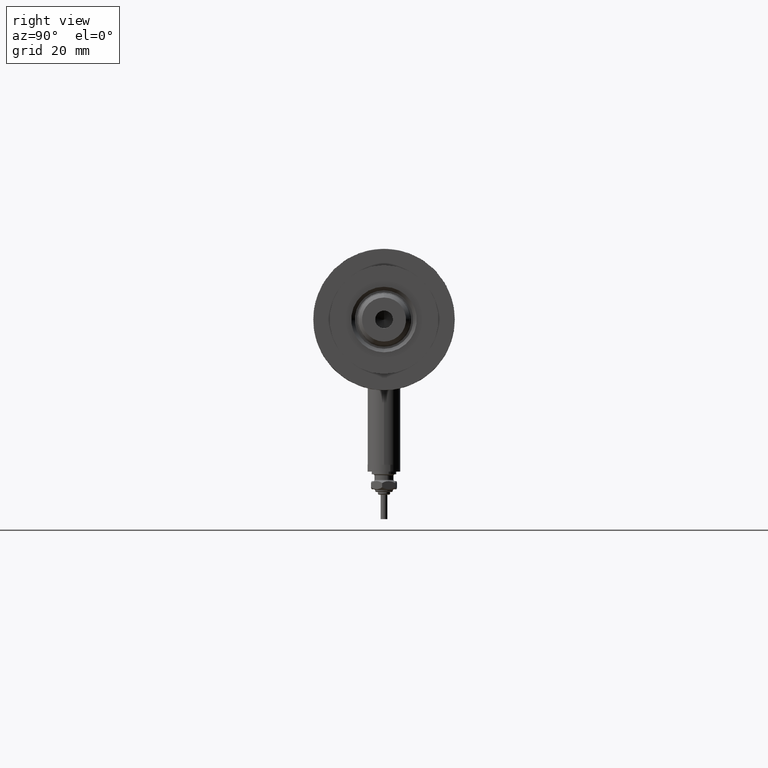
[diagram: clean part render]
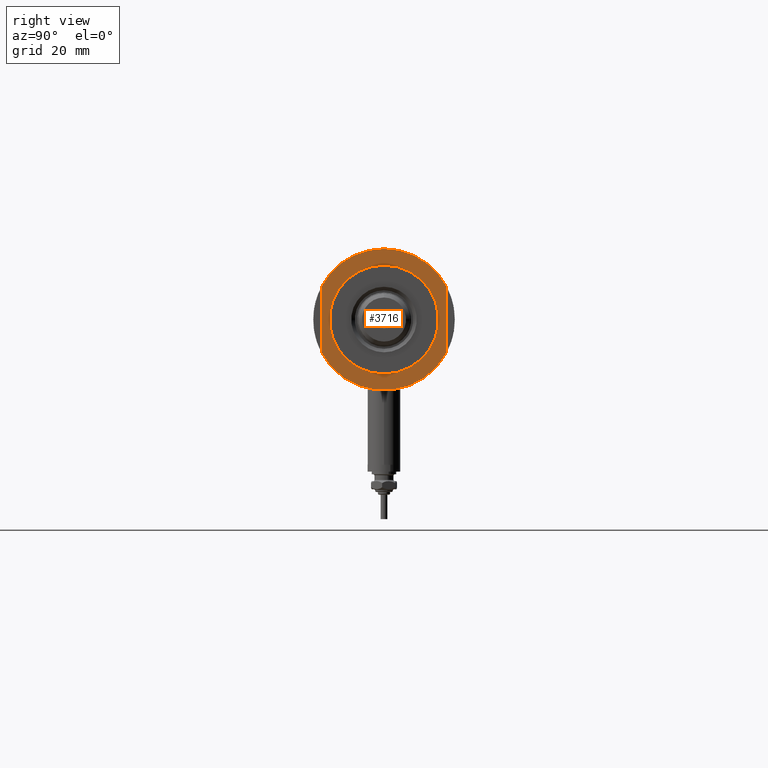
[diagram: same view with one face highlighted and labeled with its STEP entity id]
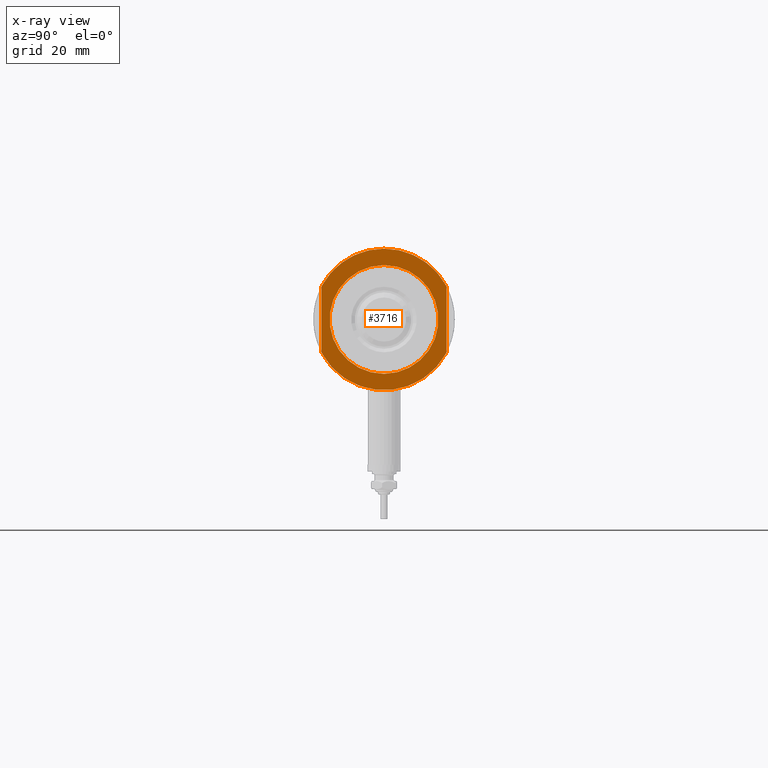
[diagram: x-ray of the same camera — body ghosted, the highlighted face saturated]
A machine part, right view. The second image highlights one B-rep face of the part: STEP entity #3716.
The next image is the same camera in x-ray: the body ghosted, the highlighted face saturated — about 0% of this face is hidden behind the body in this view.
In plain terms, the highlighted planar face has unit normal (1, 0, -0).
Its self-contained STEP definition (entity closure, byte-faithful):
#163 = ORIENTED_EDGE ( 'NONE', *, *, #5172, .T. ) ;
#235 = CARTESIAN_POINT ( 'NONE',  ( 12.12435565298214790, 23.00000000000000355, 15.50000000000000000 ) ) ;
#653 = DIRECTION ( 'NONE',  ( 0.000000000000000000, 0.000000000000000000, 1.000000000000000000 ) ) ;
#700 = VECTOR ( 'NONE', #1946, 1000.000000000000000 ) ;
#787 = CARTESIAN_POINT ( 'NONE',  ( 0.000000000000000000, 0.000000000000000000, 15.50000000000000000 ) ) ;
#801 = ORIENTED_EDGE ( 'NONE', *, *, #4241, .T. ) ;
#979 = CARTESIAN_POINT ( 'NONE',  ( 0.000000000000000000, 0.000000000000000000, 15.50000000000000000 ) ) ;
#1017 = DIRECTION ( 'NONE',  ( 0.000000000000000000, 0.000000000000000000, 1.000000000000000000 ) ) ;
#1018 = VERTEX_POINT ( 'NONE', #4297 ) ;
#1050 = CARTESIAN_POINT ( 'NONE',  ( 0.000000000000000000, 0.000000000000000000, 15.50000000000000000 ) ) ;
#1079 = CIRCLE ( 'NONE', #4159, 20.00000000000000000 ) ;
#1093 = VECTOR ( 'NONE', #1765, 1000.000000000000000 ) ;
#1213 = CARTESIAN_POINT ( 'NONE',  ( 0.000000000000000000, 0.000000000000000000, 15.50000000000000000 ) ) ;
#1299 = DIRECTION ( 'NONE',  ( -0.000000000000000000, -0.000000000000000000, -1.000000000000000000 ) ) ;
#1310 = EDGE_CURVE ( 'NONE', #3329, #4868, #2710, .T. ) ;
#1416 = AXIS2_PLACEMENT_3D ( 'NONE', #979, #1017, #5885 ) ;
#1445 = DIRECTION ( 'NONE',  ( 1.000000000000000000, 0.000000000000000000, -0.000000000000000000 ) ) ;
#1685 = ORIENTED_EDGE ( 'NONE', *, *, #3199, .F. ) ;
#1752 = CARTESIAN_POINT ( 'NONE',  ( 20.00000000000000000, 0.000000000000000000, 15.50000000000000000 ) ) ;
#1765 = DIRECTION ( 'NONE',  ( -1.000000000000000000, -0.000000000000000000, -0.000000000000000000 ) ) ;
#1786 = FACE_BOUND ( 'NONE', #4010, .T. ) ;
#1891 = ORIENTED_EDGE ( 'NONE', *, *, #5789, .F. ) ;
#1904 = CIRCLE ( 'NONE', #5391, 26.00000000000000355 ) ;
#1946 = DIRECTION ( 'NONE',  ( 1.000000000000000000, 0.000000000000000000, 0.000000000000000000 ) ) ;
#2184 = ORIENTED_EDGE ( 'NONE', *, *, #3807, .T. ) ;
#2203 = DIRECTION ( 'NONE',  ( 1.000000000000000000, 0.000000000000000000, 0.000000000000000000 ) ) ;
#2232 = CIRCLE ( 'NONE', #1416, 26.00000000000000355 ) ;
#2398 = CARTESIAN_POINT ( 'NONE',  ( -12.12435565298215145, 23.00000000000000355, 15.50000000000000000 ) ) ;
#2414 = CARTESIAN_POINT ( 'NONE',  ( -26.00000000000000355, 0.000000000000000000, 15.50000000000000000 ) ) ;
#2506 = DIRECTION ( 'NONE',  ( -0.000000000000000000, -0.000000000000000000, -1.000000000000000000 ) ) ;
#2514 = CARTESIAN_POINT ( 'NONE',  ( -20.00000000000000000, 2.449293598294706513E-15, 15.50000000000000000 ) ) ;
#2710 = CIRCLE ( 'NONE', #3121, 20.00000000000000000 ) ;
#2878 = DIRECTION ( 'NONE',  ( 0.000000000000000000, 0.000000000000000000, 1.000000000000000000 ) ) ;
#3003 = CARTESIAN_POINT ( 'NONE',  ( -12.12435565298214613, 23.00000000000000355, 15.50000000000000000 ) ) ;
#3121 = AXIS2_PLACEMENT_3D ( 'NONE', #1213, #1299, #4670 ) ;
#3136 = CARTESIAN_POINT ( 'NONE',  ( 0.000000000000000000, 0.000000000000000000, 15.50000000000000000 ) ) ;
#3148 = AXIS2_PLACEMENT_3D ( 'NONE', #787, #2878, #6229 ) ;
#3163 = LINE ( 'NONE', #6151, #1093 ) ;
#3199 = EDGE_CURVE ( 'NONE', #4972, #1018, #3163, .T. ) ;
#3273 = DIRECTION ( 'NONE',  ( 0.000000000000000000, 0.000000000000000000, 1.000000000000000000 ) ) ;
#3329 = VERTEX_POINT ( 'NONE', #2514 ) ;
#3342 = CIRCLE ( 'NONE', #3148, 26.00000000000000355 ) ;
#3716 = ADVANCED_FACE ( 'NONE', ( #1786, #3741 ), #4840, .T. ) ;
#3741 = FACE_OUTER_BOUND ( 'NONE', #5317, .T. ) ;
#3807 = EDGE_CURVE ( 'NONE', #4868, #3329, #1079, .T. ) ;
#3809 = ORIENTED_EDGE ( 'NONE', *, *, #4117, .T. ) ;
#3903 = DIRECTION ( 'NONE',  ( 1.000000000000000000, 0.000000000000000000, 0.000000000000000000 ) ) ;
#4010 = EDGE_LOOP ( 'NONE', ( #2184, #5007 ) ) ;
#4117 = EDGE_CURVE ( 'NONE', #4972, #4535, #1904, .T. ) ;
#4129 = CARTESIAN_POINT ( 'NONE',  ( 12.12435565298215323, -22.99999999999999645, 15.50000000000000000 ) ) ;
#4159 = AXIS2_PLACEMENT_3D ( 'NONE', #1050, #2506, #3903 ) ;
#4241 = EDGE_CURVE ( 'NONE', #4710, #1018, #3342, .T. ) ;
#4297 = CARTESIAN_POINT ( 'NONE',  ( -12.12435565298215323, -22.99999999999999645, 15.50000000000000000 ) ) ;
#4535 = VERTEX_POINT ( 'NONE', #235 ) ;
#4558 = AXIS2_PLACEMENT_3D ( 'NONE', #5702, #3273, #1445 ) ;
#4670 = DIRECTION ( 'NONE',  ( 1.000000000000000000, 0.000000000000000000, 0.000000000000000000 ) ) ;
#4710 = VERTEX_POINT ( 'NONE', #2414 ) ;
#4760 = LINE ( 'NONE', #2398, #700 ) ;
#4840 = PLANE ( 'NONE',  #4558 ) ;
#4868 = VERTEX_POINT ( 'NONE', #1752 ) ;
#4972 = VERTEX_POINT ( 'NONE', #4129 ) ;
#5007 = ORIENTED_EDGE ( 'NONE', *, *, #1310, .T. ) ;
#5172 = EDGE_CURVE ( 'NONE', #5627, #4710, #2232, .T. ) ;
#5317 = EDGE_LOOP ( 'NONE', ( #1685, #3809, #1891, #163, #801 ) ) ;
#5391 = AXIS2_PLACEMENT_3D ( 'NONE', #3136, #653, #2203 ) ;
#5627 = VERTEX_POINT ( 'NONE', #3003 ) ;
#5702 = CARTESIAN_POINT ( 'NONE',  ( 0.000000000000000000, 0.000000000000000000, 15.50000000000000000 ) ) ;
#5789 = EDGE_CURVE ( 'NONE', #5627, #4535, #4760, .T. ) ;
#5885 = DIRECTION ( 'NONE',  ( 1.000000000000000000, 0.000000000000000000, 0.000000000000000000 ) ) ;
#6151 = CARTESIAN_POINT ( 'NONE',  ( -12.12435565298215145, -22.99999999999999645, 15.50000000000000000 ) ) ;
#6229 = DIRECTION ( 'NONE',  ( 1.000000000000000000, 0.000000000000000000, 0.000000000000000000 ) ) ;